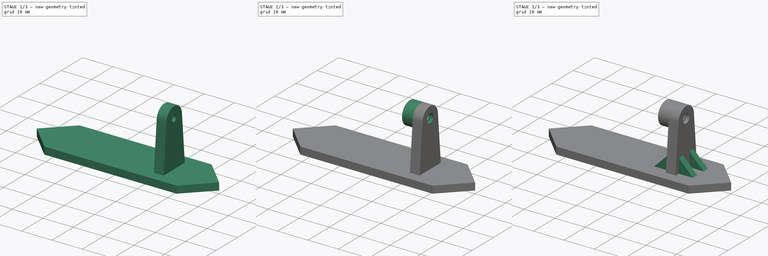
[diagram: build sequence overview — one tinted view per stage of 3, left to right]
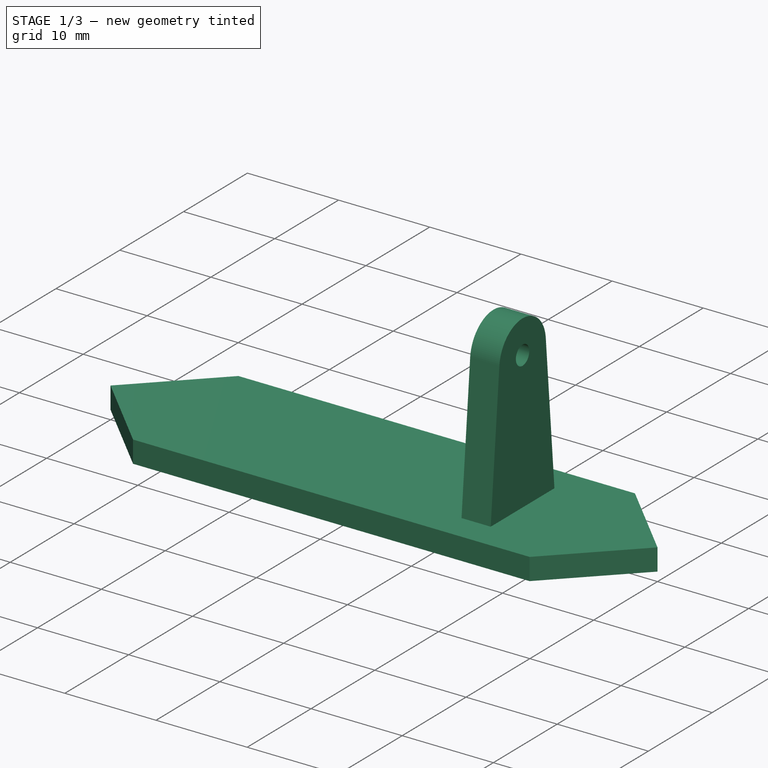
[diagram: stage 1 of 3 — iso view after this stage's code; geometry added in this stage tinted green]
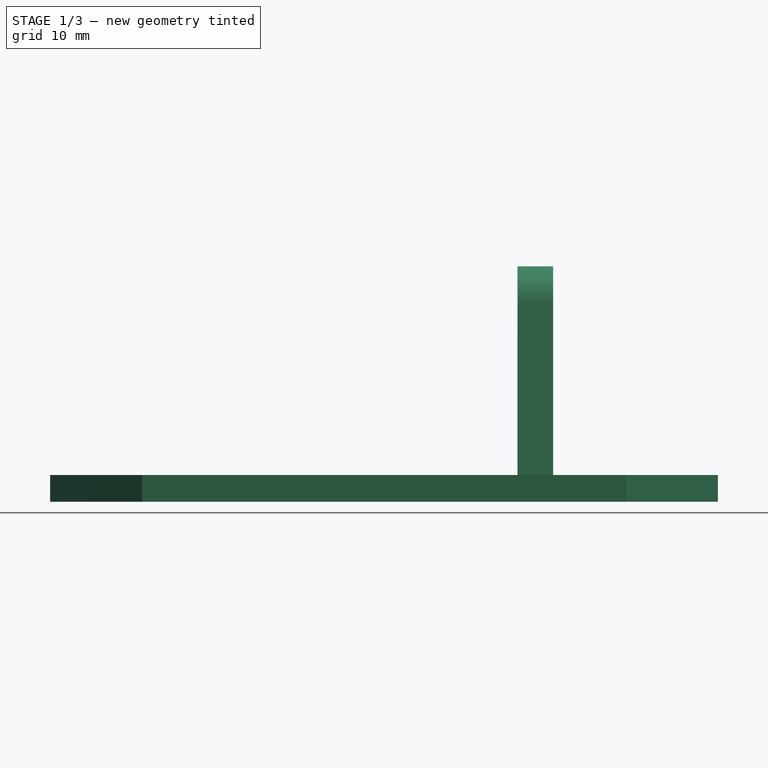
[diagram: stage 1 of 3 — front view after this stage's code; geometry added in this stage tinted green]
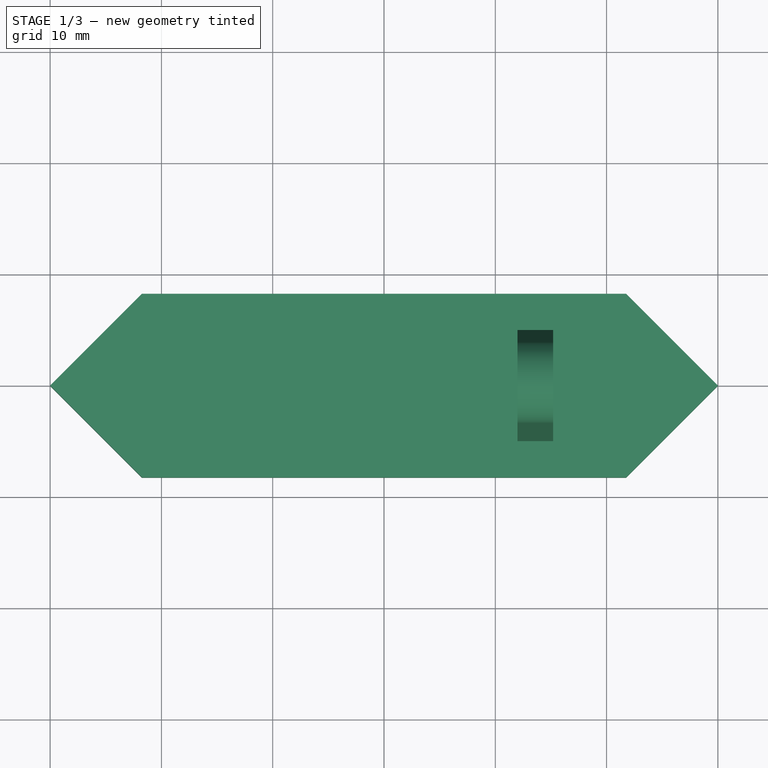
[diagram: stage 1 of 3 — top view after this stage's code; geometry added in this stage tinted green]
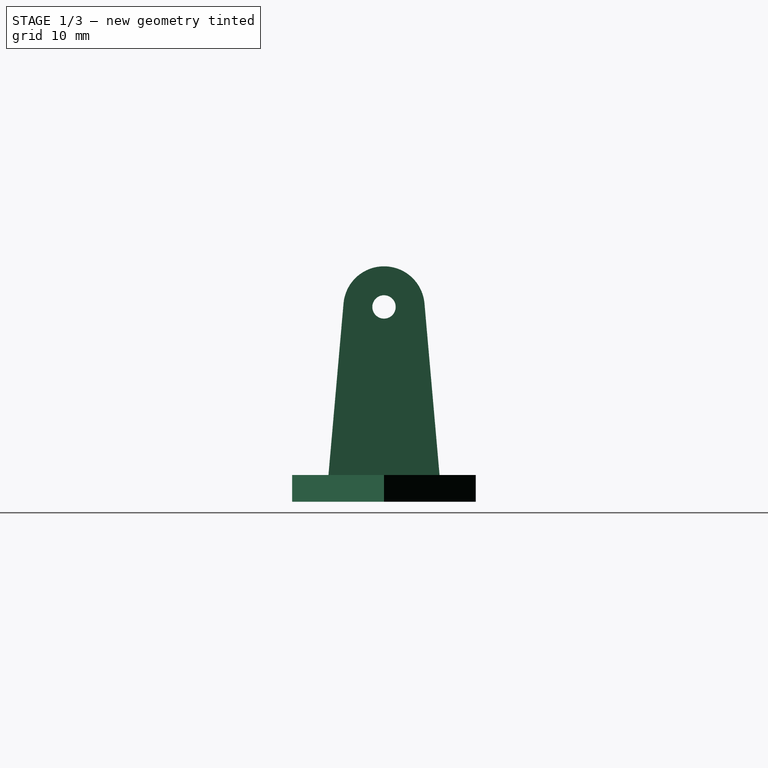
[diagram: stage 1 of 3 — right view after this stage's code; geometry added in this stage tinted green]
FCSTD DOCUMENT  (FreeCAD 0.21R33694 (Git))
Label: Segment
License: All rights reserved
LicenseURL: http://en.wikipedia.org/wiki/All_rights_reserved
objects: Sketcher::SketchObject×5, PartDesign::Pad×4, PartDesign::Plane×2, PartDesign::Pocket×1, PartDesign::LinearPattern×1, PartDesign::Body×1, Spreadsheet::Sheet×1
note: 19 computed .brp shape members not serialized (recipe doc carries the construction recipe); baked Part::Feature solids carry a one-line shape summary decoded from their .brp

FEATURE [Sketcher::SketchObject] Sketch
  FullyConstrained = true
  MapMode = 5
  Support = -> [XY_Plane]
  expr: Constraints[10] = <<Params>>.face_height
  expr: Constraints[15] = <<Params>>.face_width
  sketch-geometry (6):
    g0: LineSegment StartX=-21.75 StartY=8.25 StartZ=0 EndX=21.75 EndY=8.25 EndZ=0
    g1: LineSegment StartX=-21.75 StartY=-8.25 StartZ=0 EndX=21.75 EndY=-8.25 EndZ=0
    g2: LineSegment StartX=21.75 StartY=8.25 StartZ=0 EndX=30 EndY=0 EndZ=0
    g3: LineSegment StartX=21.75 StartY=-8.25 StartZ=0 EndX=30 EndY=0 EndZ=0
    g4: LineSegment StartX=-21.75 StartY=-8.25 StartZ=0 EndX=-30 EndY=0 EndZ=0
    g5: LineSegment StartX=-21.75 StartY=8.25 StartZ=0 EndX=-30 EndY=0 EndZ=0
  constraints (16):
    c: Horizontal(g0)
    c: Horizontal(g1)
    c: Coincident(g2,g0)
    c: PointOnObject(g2,g-1)
    c: Coincident(g3,g1)
    c: Coincident(g3,g2)
    c: Coincident(g4,g1)
    c: Coincident(g5,g0)
    c: Coincident(g5,g4)
    c: Angle(g4,g5) = 1.5708
    c: DistanceY(g1,g0) = 16.5
    c: Angle(g2,g3) = 1.5708
    c: Symmetric(g0,g1,g-1)
    c: Equal(g0,g1)
    c: Symmetric(g4,g2,g-2)
    c: DistanceX(g4,g2) = 60
FEATURE [PartDesign::Pad] Pad  label="Face"
  Direction = (0,0,1)
  Length = 2.4
  Length2 = 100
  Profile = -> Sketch
  Type = 0
  expr: Length = <<Params>>.face_thickness
FEATURE [Sketcher::SketchObject] Sketch002
  AttachmentOffset = pos=(0,0,12) rot=(0,0,1;0rad)
  FullyConstrained = true
  MapMode = 5
  Placement = pos=(12,-2.7e-15,2.7e-15) rot=(0.57735,0.57735,0.57735;2.0944rad)
  Support = -> [YZ_Plane]
  expr: .AttachmentOffset.Base.z = <<Params>>.arm_offset
  expr: Constraints[11] = <<Params>>.screw_height
  expr: Constraints[3] = <<Params>>.shaft_can_external
  expr: Constraints[5] = <<Params>>.arm_width
  expr: Constraints[6] = <<Params>>.arm_height
  expr: Constraints[8] = <<Params>>.screw_diameter
  sketch-geometry (5):
    g0: LineSegment StartX=-5 StartY=2.3 StartZ=0 EndX=5 EndY=2.3 EndZ=0
    g1: ArcOfCircle CenterX=0 CenterY=17.5 CenterZ=0 NormalX=0 NormalY=0 NormalZ=1 AngleXU=0 Radius=3.65 StartAngle=0.0876648 EndAngle=3.05393
    g2: LineSegment StartX=-5 StartY=2.3 StartZ=0 EndX=-3.63598 EndY=17.8196 EndZ=0
    g3: LineSegment StartX=5 StartY=2.3 StartZ=0 EndX=3.63598 EndY=17.8196 EndZ=0
    g4: Circle CenterX=0 CenterY=17.5 CenterZ=0 NormalX=0 NormalY=0 NormalZ=1 AngleXU=0 Radius=1.05
  constraints (12):
    c: PointOnObject(g1,g-2)
    c: Coincident(g2,g0)
    c: Coincident(g3,g0)
    c: Diameter(g1) = 7.3
    c: Symmetric(g0,g0,g-2)
    c: DistanceX(g0,g0) = 10
    c: DistanceY(g-1,g0) = 2.3
    c: Coincident(g4,g1)
    c: Diameter(g4) = 2.1
    c: Tangent(g1,g2) = 1.5708
    c: Tangent(g1,g3) = -1.5708
    c: DistanceY(g-1,g1) = 17.5
FEATURE [PartDesign::Pad] Pad001  label="Arm"
  BaseFeature = -> Pad
  Direction = (1,-2e-16,3e-16)
  Length = 3.2
  Length2 = 10
  Profile = -> Sketch002
  ReferenceAxis = -> Sketch002 [N_Axis]
  Type = 0
  expr: Length = <<Params>>.arm_thickness
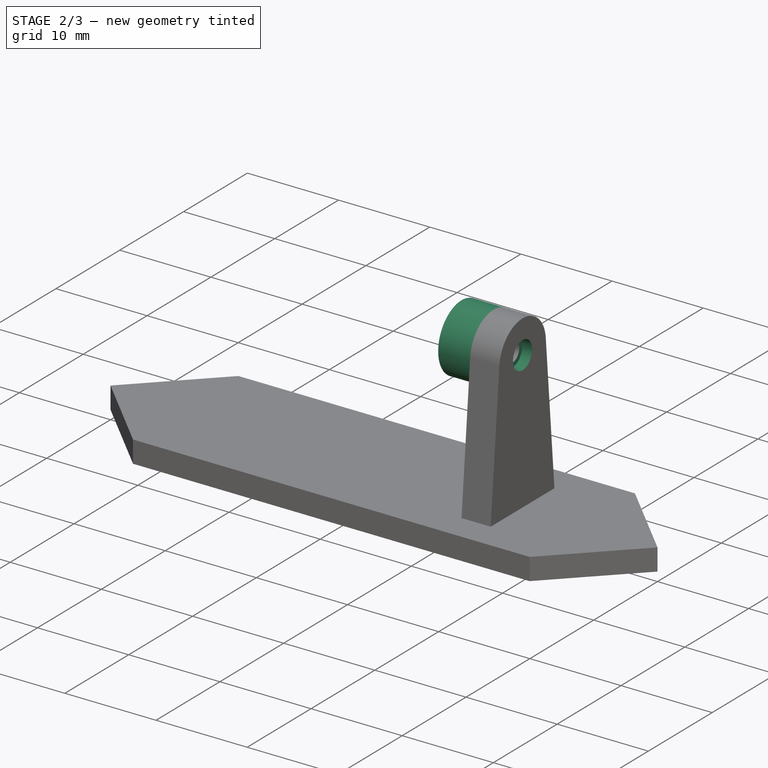
[diagram: stage 2 of 3 — iso view after this stage's code; geometry added in this stage tinted green]
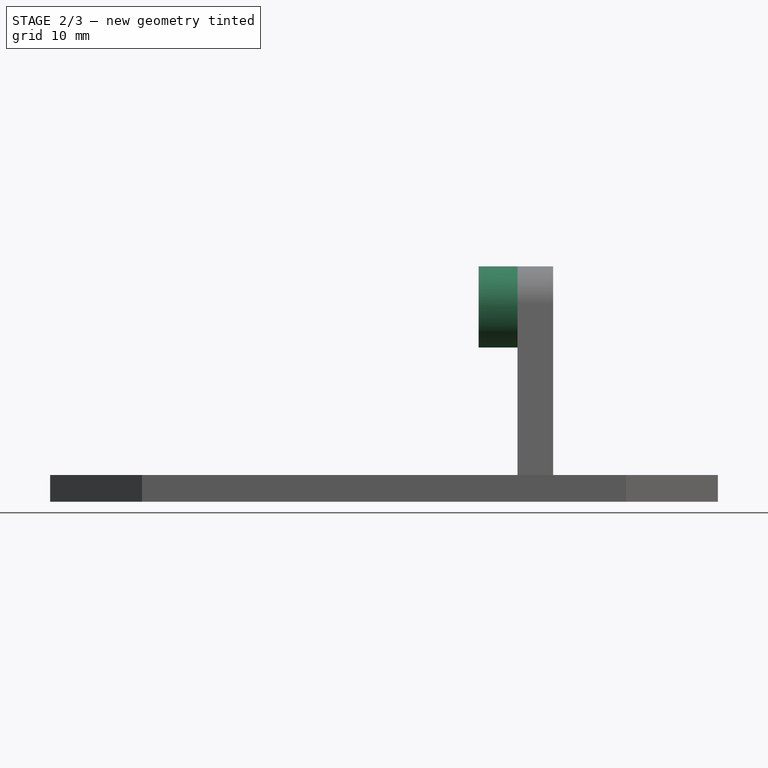
[diagram: stage 2 of 3 — front view after this stage's code; geometry added in this stage tinted green]
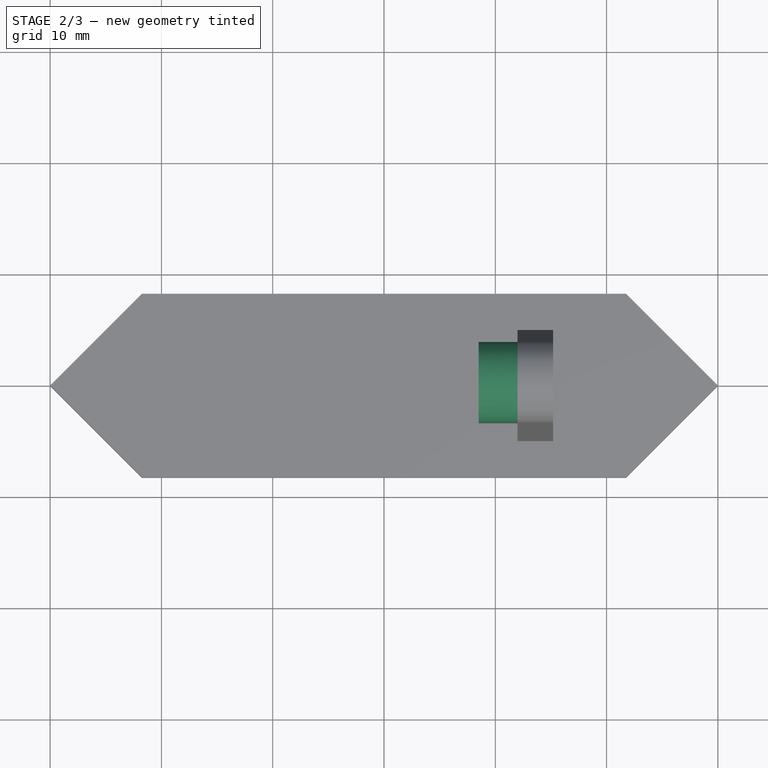
[diagram: stage 2 of 3 — top view after this stage's code; geometry added in this stage tinted green]
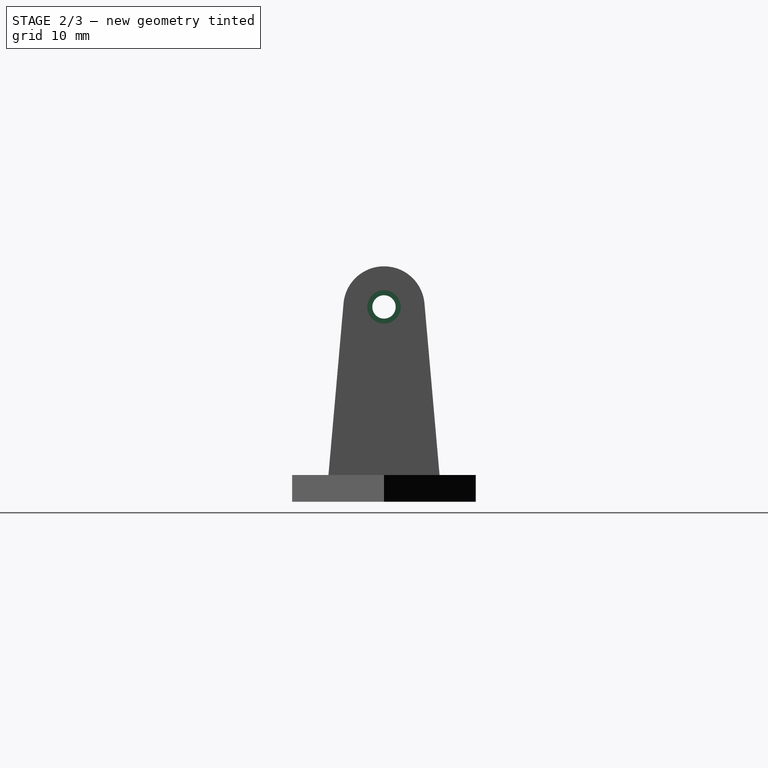
[diagram: stage 2 of 3 — right view after this stage's code; geometry added in this stage tinted green]
FEATURE [PartDesign::Plane] DatumPlane  label="PlaneCan"
  Length = 60
  MapMode = 5
  Placement = pos=(12,-2.4e-15,2.5e-15) rot=(-0.57735,0.57735,0.57735;4.18879rad)
  ResizeMode = 0
  Support = -> [Pad001]
  Width = 60
FEATURE [Sketcher::SketchObject] Sketch003
  FullyConstrained = true
  MapMode = 5
  Placement = pos=(12,-2.4e-15,2.5e-15) rot=(-0.57735,0.57735,0.57735;4.18879rad)
  Support = -> [DatumPlane]
  expr: Constraints[1] = <<Params>>.shaft_can_external
  expr: Constraints[3] = <<Params>>.shaft_can_Internal
  expr: Constraints[4] = <<Params>>.screw_height
  sketch-geometry (2):
    g0: Circle CenterX=0 CenterY=17.5 CenterZ=0 NormalX=0 NormalY=0 NormalZ=1 AngleXU=0 Radius=3.65
    g1: Circle CenterX=0 CenterY=17.5 CenterZ=0 NormalX=0 NormalY=0 NormalZ=1 AngleXU=0 Radius=2.5
  constraints (5):
    c: PointOnObject(g0,g-2)
    c: Diameter(g0) = 7.3
    c: Coincident(g1,g0)
    c: Diameter(g1) = 5
    c: DistanceY(g-1,g0) = 17.5
FEATURE [PartDesign::Pad] Pad002  label="ShaftHole"
  BaseFeature = -> Pad001
  Direction = (-1,2e-16,-2e-16)
  Length = 3.5
  Length2 = 10
  Profile = -> Sketch003
  ReferenceAxis = -> Sketch003 [N_Axis]
  Type = 0
  expr: Length = <<Params>>.shaft_can_length
FEATURE [PartDesign::Plane] DatumPlane001  label="PlaneScrewHole"
  Length = 60
  MapMode = 5
  Placement = pos=(15.2,-3.1e-15,3.2e-15) rot=(0.57735,0.57735,0.57735;2.0944rad)
  ResizeMode = 0
  Support = -> [Pad002]
  Width = 60
FEATURE [Sketcher::SketchObject] Sketch004
  FullyConstrained = true
  MapMode = 5
  Placement = pos=(15.2,-3.1e-15,3.2e-15) rot=(0.57735,0.57735,0.57735;2.0944rad)
  Support = -> [DatumPlane001]
  expr: Constraints[1] = <<Params>>.screw_cavity
  expr: Constraints[2] = <<Params>>.screw_height
  sketch-geometry (1):
    g0: Circle CenterX=0 CenterY=17.5 CenterZ=0 NormalX=0 NormalY=0 NormalZ=1 AngleXU=0 Radius=1.5
  constraints (3):
    c: PointOnObject(g0,g-2)
    c: Diameter(g0) = 3
    c: DistanceY(g-1,g0) = 17.5
FEATURE [PartDesign::Pocket] Pocket  label="ScrewHole"
  BaseFeature = -> Pad002
  Direction = (-1,2e-16,-2e-16)
  Length = 1.1
  Length2 = 5
  Profile = -> Sketch004
  ReferenceAxis = -> Sketch004 [N_Axis]
  Type = 0
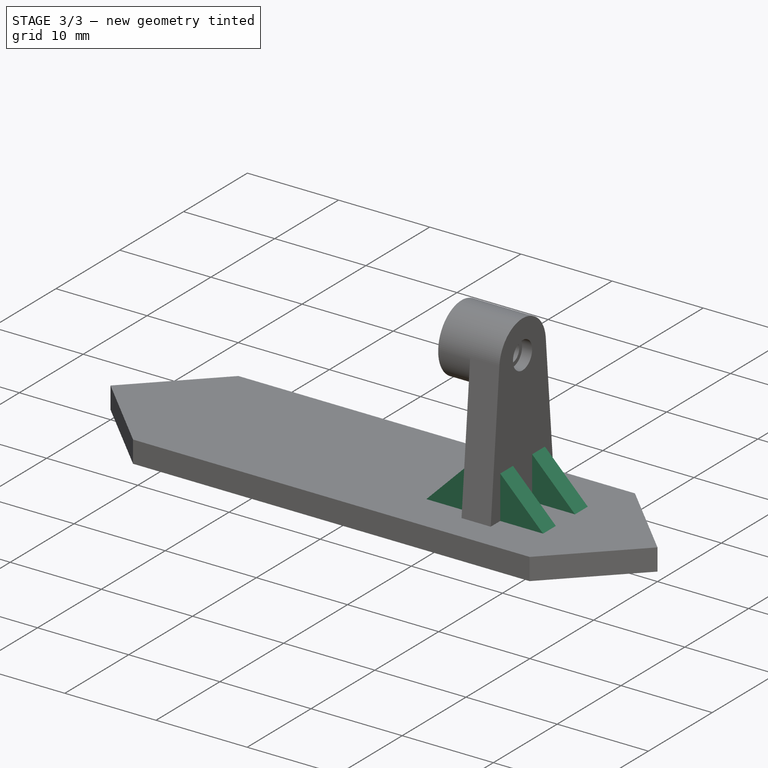
[diagram: stage 3 of 3 — iso view after this stage's code; geometry added in this stage tinted green]
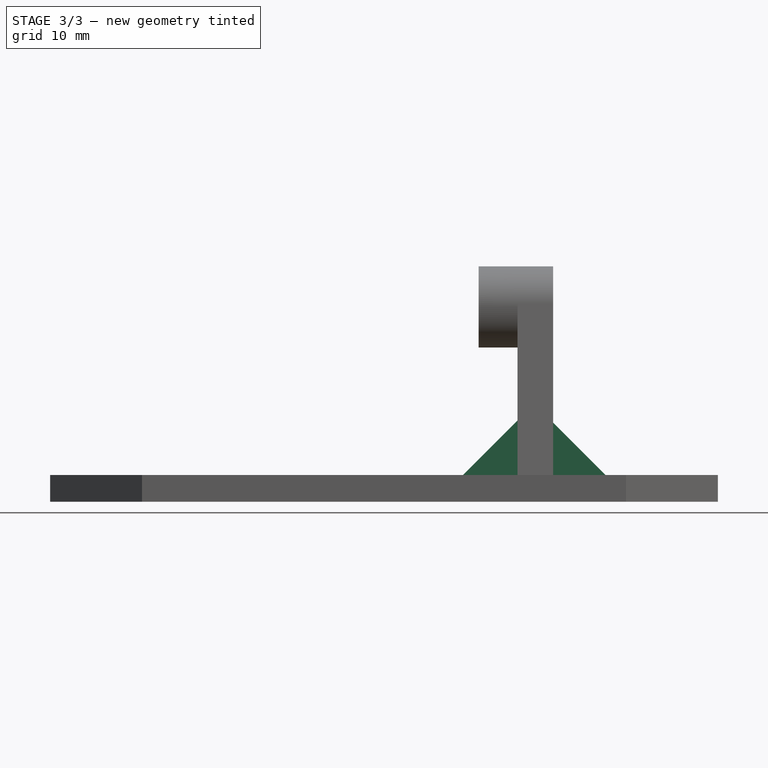
[diagram: stage 3 of 3 — front view after this stage's code; geometry added in this stage tinted green]
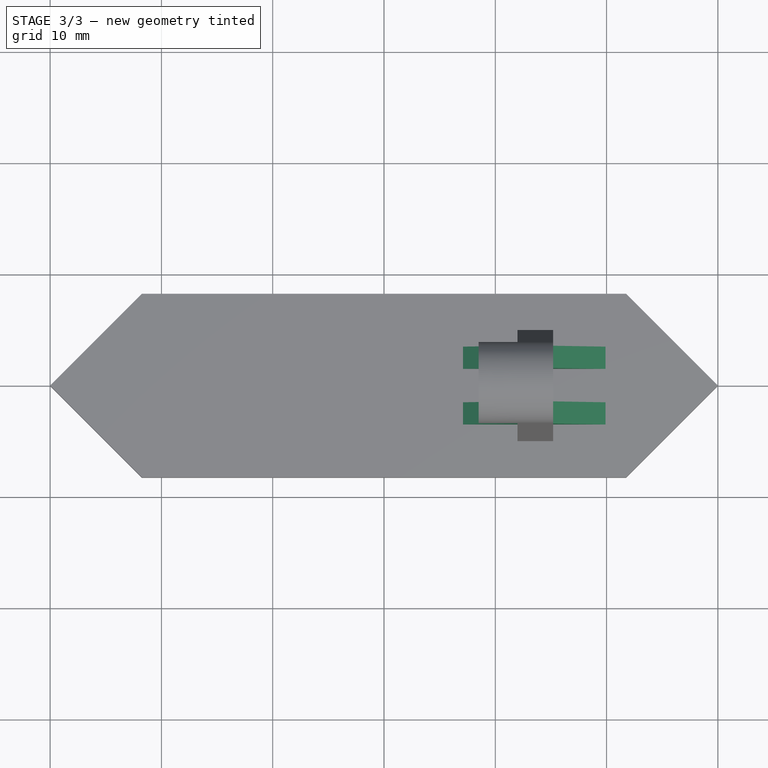
[diagram: stage 3 of 3 — top view after this stage's code; geometry added in this stage tinted green]
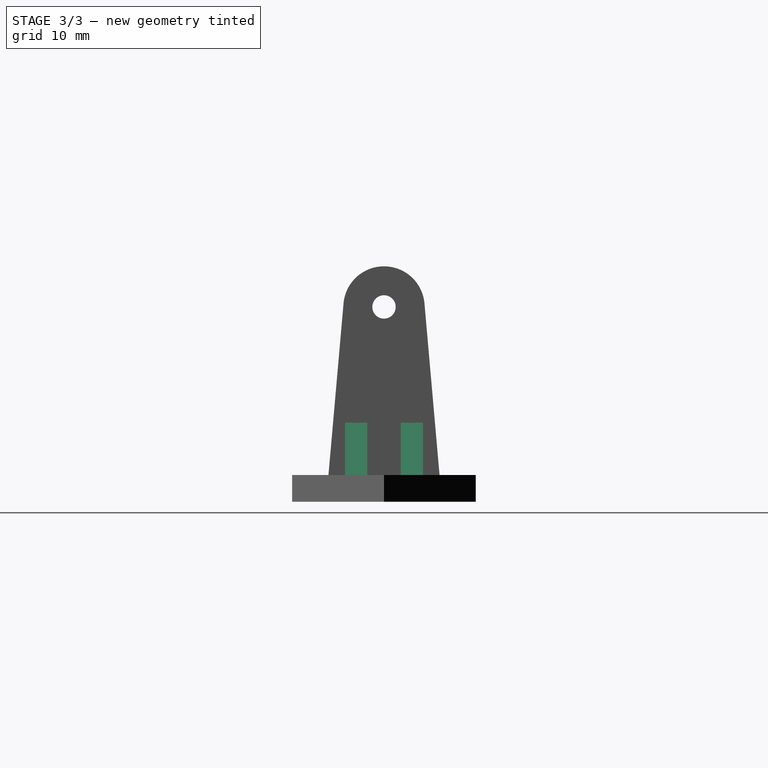
[diagram: stage 3 of 3 — right view after this stage's code; geometry added in this stage tinted green]
FEATURE [Sketcher::SketchObject] Sketch005
  AttachmentOffset = pos=(0,0,1.5) rot=(0,0,1;0rad)
  FullyConstrained = true
  MapMode = 5
  Placement = pos=(0,-1.5,-3e-16) rot=(1,0,0;1.5708rad)
  Support = -> [XZ_Plane]
  expr: .AttachmentOffset.Base.y = 0 mm
  expr: Constraints[4] = <<Params>>.nerve_size
  expr: Constraints[5] = <<Params>>.nerve_size
  expr: Constraints[7] = <<Params>>.arm_height
  expr: Constraints[8] = <<Params>>.arm_offset
  sketch-geometry (6):
    g0: LineSegment StartX=7 StartY=2.3 StartZ=0 EndX=12 EndY=7.3 EndZ=0
    g1: LineSegment StartX=12 StartY=7.3 StartZ=0 EndX=12 EndY=2.3 EndZ=0
    g2: LineSegment StartX=12 StartY=2.3 StartZ=0 EndX=7 EndY=2.3 EndZ=0
    g3: LineSegment StartX=15 StartY=7.3 StartZ=0 EndX=15 EndY=2.3 EndZ=0
    g4: LineSegment StartX=15 StartY=2.3 StartZ=0 EndX=20 EndY=2.3 EndZ=0
    g5: LineSegment StartX=20 StartY=2.3 StartZ=0 EndX=15 EndY=7.3 EndZ=0
  constraints (18):
    c: Vertical(g1)
    c: Coincident(g0,g1)
    c: Coincident(g1,g2)
    c: Coincident(g0,g2)
    c: DistanceY(g1,g1) = 5
    c: DistanceX(g2,g2) = 5
    c: Angle(g1,g2) = 1.5708
    c: DistanceY(g-1,g1) = 2.3
    c: DistanceX(g-1,g1) = 12
    c: Vertical(g3)
    c: Coincident(g3,g4)
    c: Horizontal(g4)
    c: Coincident(g4,g5)
    c: Coincident(g5,g3)
    c: Horizontal(g3,g1)
    c: Equal(g2,g4)
    c: Equal(g1,g3)
    c: DistanceX(g0,g3) = 3
FEATURE [PartDesign::Pad] Pad003  label="Nerve"
  BaseFeature = -> Pocket
  Direction = (0,-1,-2e-16)
  Length = 2
  Length2 = 10
  Profile = -> Sketch005
  ReferenceAxis = -> Sketch005 [N_Axis]
  Type = 0
FEATURE [PartDesign::LinearPattern] LinearPattern
  BaseFeature = -> Pad003
  Direction = -> Y_Axis
  Length = 5
  Occurrences = 2
  Originals = -> [Pad003]
FEATURE [PartDesign::Body] Body
  Group = -> [Sketch,Pad,Sketch002,Pad001,DatumPlane,Sketch003,Pad002,DatumPlane001,Sketch004,Pocket,Sketch005,Pad003,LinearPattern]
  Origin = -> Origin
  Tip = -> LinearPattern
FEATURE [Spreadsheet::Sheet] Spreadsheet  label="Params"
  cells = B2='face_width; C2(face_width)=60; B3='face_height; C3(face_height)=16.5; B4='face_thickness; C4(face_thickness)=2.4; B5='screw_diameter; C5(screw_diameter)=2.1; B6='screw_height; C6(screw_height)=17.5; B7='shaft_can_external; C7(shaft_can_external)=7.3; B8='screw_cavity; C8(screw_cavity)=3; B9='shaft_can_Internal; C9(shaft_can_Internal)=5; B10='shaft_can_length; C10(shaft_can_length)=3.5; B11='arm_width; C11(arm_width)=10; B12='arm_height; C12(arm_height)==C4 - 0.1; B13='arm_thickness; C13(arm_thickness)=3.2; B14='arm_offset; C14(arm_offset)=12; B15='nerve_size; C15(nerve_size)=5
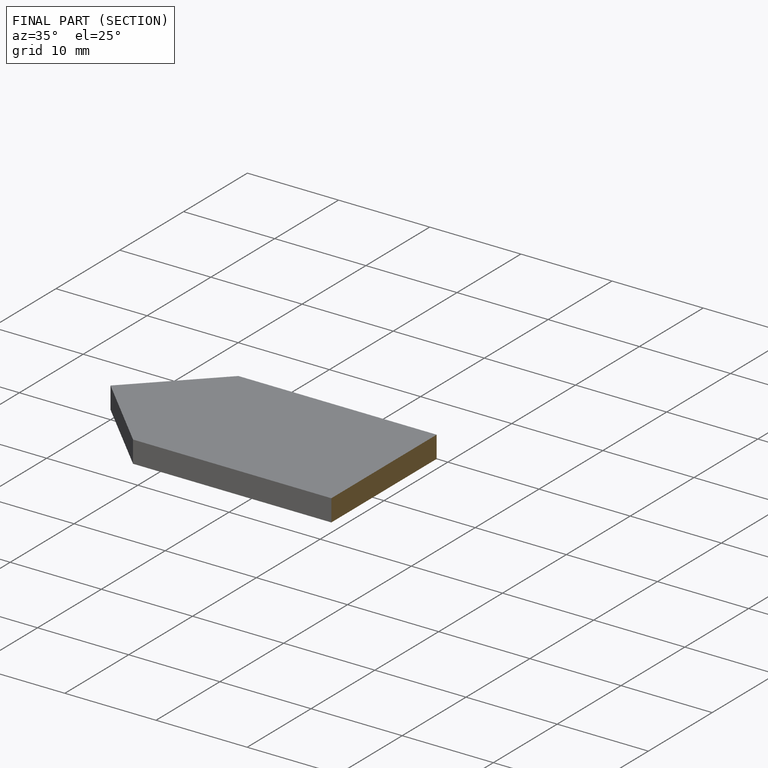
[diagram: finished part — half-section view (interior)]
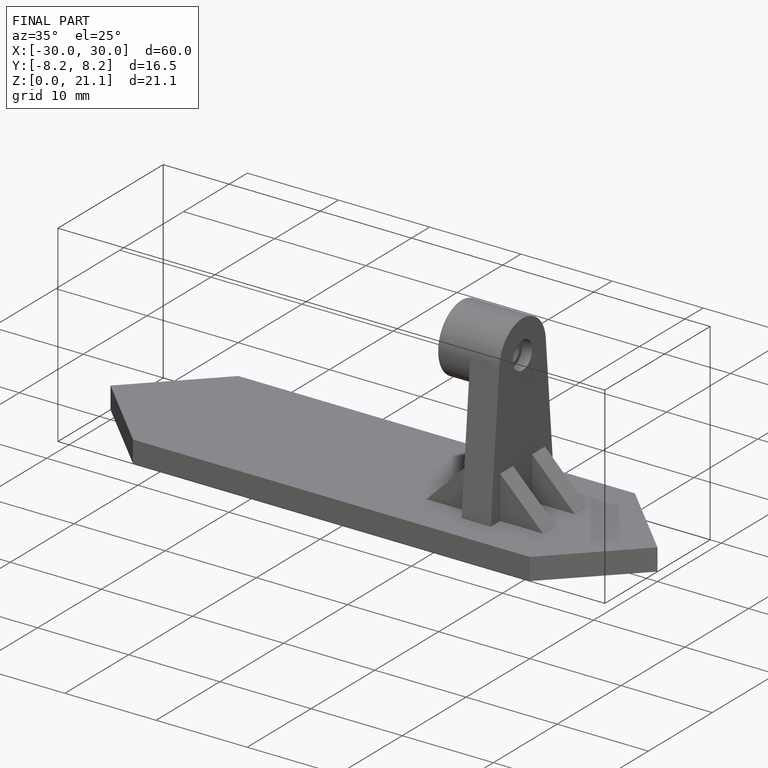
[diagram: finished part — iso view with bounding-box wireframe]
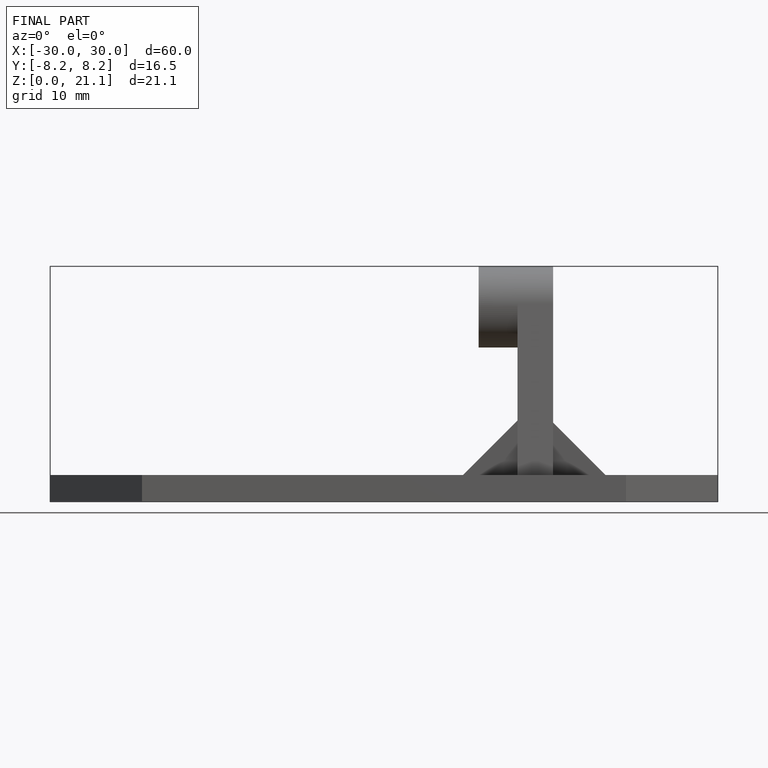
[diagram: finished part — front view with bounding-box wireframe]
